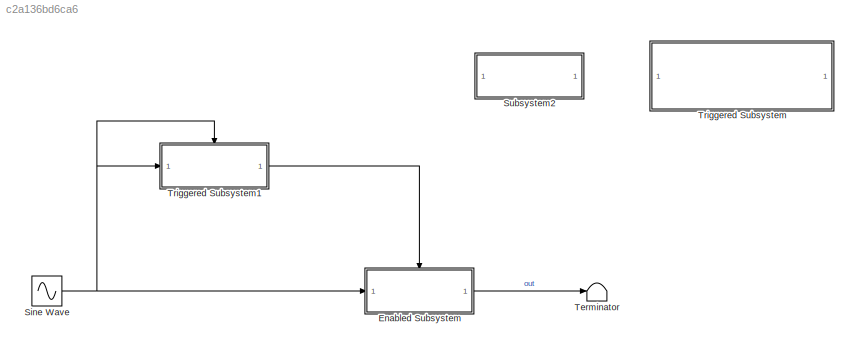
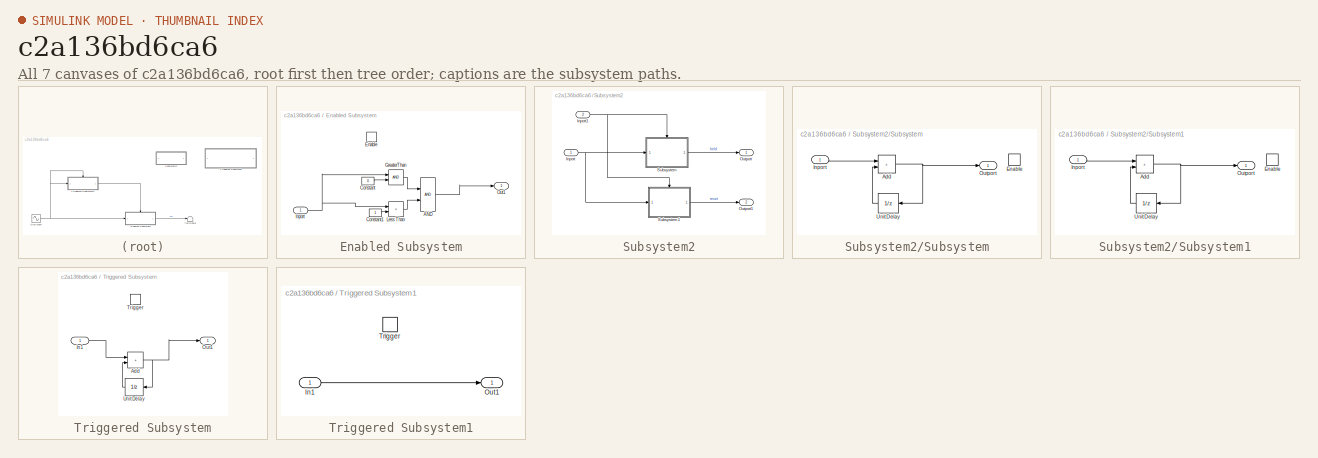
[diagram: thumbnail index - all 7 canvases of the model, root first then tree order]
MODEL slx_c2a136bd6ca6
KIND model
CONFIG AbsTol = auto
CONFIG EnableMultiTasking = off
CONFIG FixedStep = auto
CONFIG MaxStep = 0.01
CONFIG MinStep = auto
CONFIG RelTol = 1e-3
CONFIG SampleTimeConstraint = Unconstrained
CONFIG SolverName = VariableStepDiscrete
CONFIG StartTime = 0.0
CONFIG StopTime = 10.0
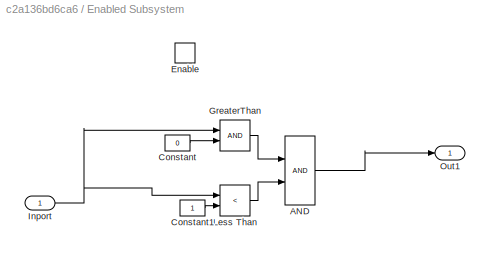
BLOCK [SubSystem] Enabled Subsystem
  TreatAsAtomicUnit = on
BLOCK [Logic] Enabled Subsystem/AND
  AllPortsSameDT = off
  OutDataTypeStr = boolean
BLOCK [Constant] Enabled Subsystem/Constant
  Value = 0
BLOCK [Constant] Enabled Subsystem/Constant1
BLOCK [EnablePort] Enabled Subsystem/Enable
BLOCK [RelationalOperator] Enabled Subsystem/GreaterThan
  InputSameDT = off
  OutDataTypeStr = boolean
  RndMeth = Simplest
BLOCK [Inport] Enabled Subsystem/Inport
BLOCK [RelationalOperator] Enabled Subsystem/Less Than
  InputSameDT = off
  Operator = <
  OutDataTypeStr = boolean
  RndMeth = Simplest
BLOCK [Outport] Enabled Subsystem/Out1
BLOCK [Sin] Sine Wave
  Amplitude = 220
  Frequency = 2*pi*50
  SampleTime = 0
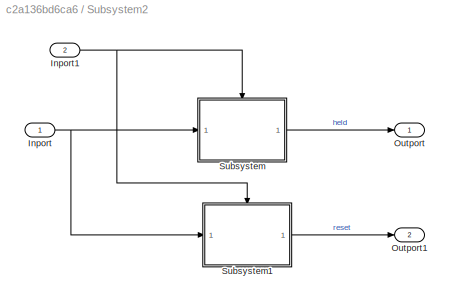
BLOCK [SubSystem] Subsystem2
  Commented = on
BLOCK [Inport] Subsystem2/Inport
BLOCK [Inport] Subsystem2/Inport1
  Port = 2
BLOCK [Outport] Subsystem2/Outport
BLOCK [Outport] Subsystem2/Outport1
  Port = 2
BLOCK [SubSystem] Subsystem2/Subsystem
BLOCK [Sum] Subsystem2/Subsystem/Add
  IconShape = rectangular
BLOCK [EnablePort] Subsystem2/Subsystem/Enable
BLOCK [Inport] Subsystem2/Subsystem/Inport
BLOCK [Outport] Subsystem2/Subsystem/Outport
BLOCK [UnitDelay] Subsystem2/Subsystem/Unit Delay
  AttributesFormatString = InitialCondition =0
  HasFrameUpgradeWarning = on
  SampleTime = -1
BLOCK [SubSystem] Subsystem2/Subsystem1
BLOCK [Sum] Subsystem2/Subsystem1/Add
  IconShape = rectangular
BLOCK [EnablePort] Subsystem2/Subsystem1/Enable
  StatesWhenEnabling = reset
BLOCK [Inport] Subsystem2/Subsystem1/Inport
BLOCK [Outport] Subsystem2/Subsystem1/Outport
BLOCK [UnitDelay] Subsystem2/Subsystem1/Unit Delay
  AttributesFormatString = InitialCondition =0
  HasFrameUpgradeWarning = on
  SampleTime = -1
BLOCK [Terminator] Terminator
BLOCK [SubSystem] Triggered Subsystem
  Commented = on
  TreatAsAtomicUnit = on
BLOCK [Sum] Triggered Subsystem/Add
  IconShape = rectangular
BLOCK [Inport] Triggered Subsystem/In1
BLOCK [Outport] Triggered Subsystem/Out1
BLOCK [TriggerPort] Triggered Subsystem/Trigger
  StatesWhenEnabling = held
  TriggerType = either
  VariantControl = (inherit)
BLOCK [UnitDelay] Triggered Subsystem/Unit Delay
  AttributesFormatString = InitialCondition=0
  HasFrameUpgradeWarning = on
  SampleTime = -1
BLOCK [SubSystem] Triggered Subsystem1
  TreatAsAtomicUnit = on
BLOCK [Inport] Triggered Subsystem1/In1
BLOCK [Outport] Triggered Subsystem1/Out1
BLOCK [TriggerPort] Triggered Subsystem1/Trigger
  StatesWhenEnabling = held
  VariantControl = (inherit)
LINE Enabled Subsystem/AND:1 -> Enabled Subsystem/Out1:1
LINE Enabled Subsystem/Constant1:1 -> Enabled Subsystem/Less Than:2
LINE Enabled Subsystem/Constant:1 -> Enabled Subsystem/GreaterThan:2
LINE Enabled Subsystem/GreaterThan:1 -> Enabled Subsystem/AND:1
NET Enabled Subsystem/Inport:1 -> Enabled Subsystem/GreaterThan:1, Enabled Subsystem/Less Than:1
LINE Enabled Subsystem/Less Than:1 -> Enabled Subsystem/AND:2
LINE Enabled Subsystem:1 -> Terminator:1
NET Sine Wave:1 -> Enabled Subsystem:1, Triggered Subsystem1:1, Triggered Subsystem1:trigger
NET Subsystem2/Inport1:1 -> Subsystem2/Subsystem1:enable, Subsystem2/Subsystem:enable
NET Subsystem2/Inport:1 -> Subsystem2/Subsystem1:1, Subsystem2/Subsystem:1
NET Subsystem2/Subsystem/Add:1 -> Subsystem2/Subsystem/Outport:1, Subsystem2/Subsystem/Unit Delay:1
LINE Subsystem2/Subsystem/Inport:1 -> Subsystem2/Subsystem/Add:1
LINE Subsystem2/Subsystem/Unit Delay:1 -> Subsystem2/Subsystem/Add:2
NET Subsystem2/Subsystem1/Add:1 -> Subsystem2/Subsystem1/Outport:1, Subsystem2/Subsystem1/Unit Delay:1
LINE Subsystem2/Subsystem1/Inport:1 -> Subsystem2/Subsystem1/Add:1
LINE Subsystem2/Subsystem1/Unit Delay:1 -> Subsystem2/Subsystem1/Add:2
LINE Subsystem2/Subsystem1:1 -> Subsystem2/Outport1:1
LINE Subsystem2/Subsystem:1 -> Subsystem2/Outport:1
NET Triggered Subsystem/Add:1 -> Triggered Subsystem/Out1:1, Triggered Subsystem/Unit Delay:1
LINE Triggered Subsystem/In1:1 -> Triggered Subsystem/Add:1
LINE Triggered Subsystem/Unit Delay:1 -> Triggered Subsystem/Add:2
LINE Triggered Subsystem1/In1:1 -> Triggered Subsystem1/Out1:1
LINE Triggered Subsystem1:1 -> Enabled Subsystem:enable
note: NET lines group one-source signal fan-out (src -> all destinations, sorted); 1:1 wires keep LINE
